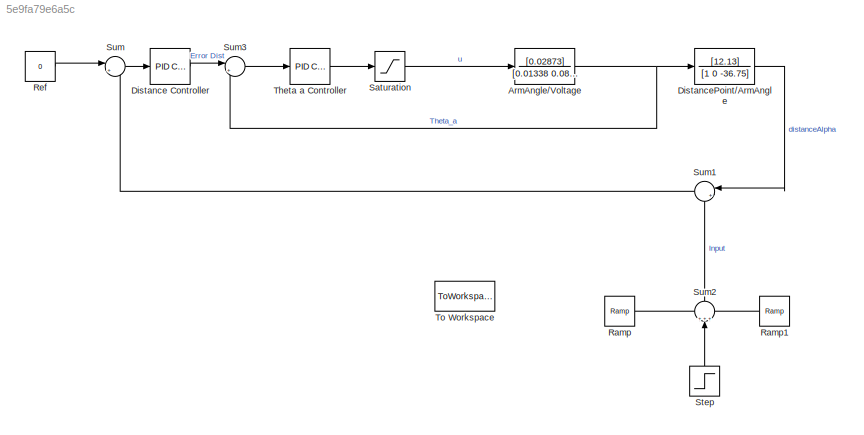
MODEL slx_5e9fa79e6a5c
KIND model
CONFIG AbsTol = auto
CONFIG EnableMultiTasking = off
CONFIG FixedStep = auto
CONFIG MaxStep = auto
CONFIG MinStep = auto
CONFIG RelTol = 1e-3
CONFIG SampleTimeConstraint = Unconstrained
CONFIG Solver = VariableStepAuto
CONFIG SolverName = VariableStepAuto
CONFIG StartTime = 0.0
CONFIG StopTime = 60
BLOCK [TransferFcn] ArmAngle//Voltage
  Denominator = [0.01338 0.08477 2.012]
  Numerator = [0.02873]
BLOCK [Reference] Distance Controller  REF=simulink/Continuous/PID Controller
  Ports = [1, 1]
  SourceBlock = simulink/Continuous/PID Controller
  SourceProductBaseCode = SL
  SourceProductName = Simulink
  SourceType = PID 1dof
BLOCK [TransferFcn] DistancePoint//ArmAngle
  Denominator = [1 0 -36.75]
  Numerator = [12.13]
BLOCK [Reference] Ramp  REF=simulink/Sources/Ramp
  Ports = [0, 1]
  SourceBlock = simulink/Sources/Ramp
  SourceProductBaseCode = SL
  SourceProductName = Simulink
  SourceType = Ramp
BLOCK [Reference] Ramp1  REF=simulink/Sources/Ramp
  Ports = [0, 1]
  SourceBlock = simulink/Sources/Ramp
  SourceProductBaseCode = SL
  SourceProductName = Simulink
  SourceType = Ramp
BLOCK [Constant] Ref
  Value = 0
BLOCK [Saturate] Saturation
  InputPortMap = u0
  LowerLimit = -14
  Ports = [1, 1]
  UpperLimit = 14
BLOCK [Step] Step
  After = -sin(pi/180)*0.1*0.8
  SampleTime = 0
  Time = 0.1
BLOCK [Sum] Sum
  IconShape = round
  InputSameDT = off
  Inputs = |+-
  OutDataTypeStr = Inherit: Inherit via internal rule
  Ports = [2, 1]
  SaturateOnIntegerOverflow = off
BLOCK [Sum] Sum1
  IconShape = round
  InputSameDT = off
  Inputs = |++
  OutDataTypeStr = Inherit: Inherit via internal rule
  Ports = [2, 1]
  SaturateOnIntegerOverflow = off
BLOCK [Sum] Sum2
  IconShape = round
  InputSameDT = off
  Inputs = +++
  OutDataTypeStr = Inherit: Inherit via internal rule
  Ports = [3, 1]
  SaturateOnIntegerOverflow = off
BLOCK [Sum] Sum3
  IconShape = round
  InputSameDT = off
  Inputs = |+-
  OutDataTypeStr = Inherit: Inherit via internal rule
  Ports = [2, 1]
  SaturateOnIntegerOverflow = off
BLOCK [Reference] Theta a Controller  REF=simulink/Continuous/PID Controller
  Ports = [1, 1]
  SourceBlock = simulink/Continuous/PID Controller
  SourceProductBaseCode = SL
  SourceProductName = Simulink
  SourceType = PID 1dof
BLOCK [ToWorkspace] To Workspace
  FixptAsFi = on
  MaxDataPoints = inf
  Ports = [1]
  SampleTime = -1
  Save2DSignal = 3-D array (concatenate along third dimension)
  SaveFormat = Timeseries
  VariableName = simout
NET ArmAngle//Voltage:1 -> DistancePoint//ArmAngle:1, Sum3:2
LINE Distance Controller:1 -> Sum3:1
LINE DistancePoint//ArmAngle:1 -> Sum1:1
LINE Ramp1:1 -> Sum2:3
LINE Ramp:1 -> Sum2:1
LINE Ref:1 -> Sum:1
LINE Saturation:1 -> ArmAngle//Voltage:1
LINE Step:1 -> Sum2:2
LINE Sum1:1 -> Sum:2
LINE Sum2:1 -> Sum1:2
LINE Sum3:1 -> Theta a Controller:1
LINE Sum:1 -> Distance Controller:1
LINE Theta a Controller:1 -> Saturation:1
note: NET lines group one-source signal fan-out (src -> all destinations, sorted); 1:1 wires keep LINE
